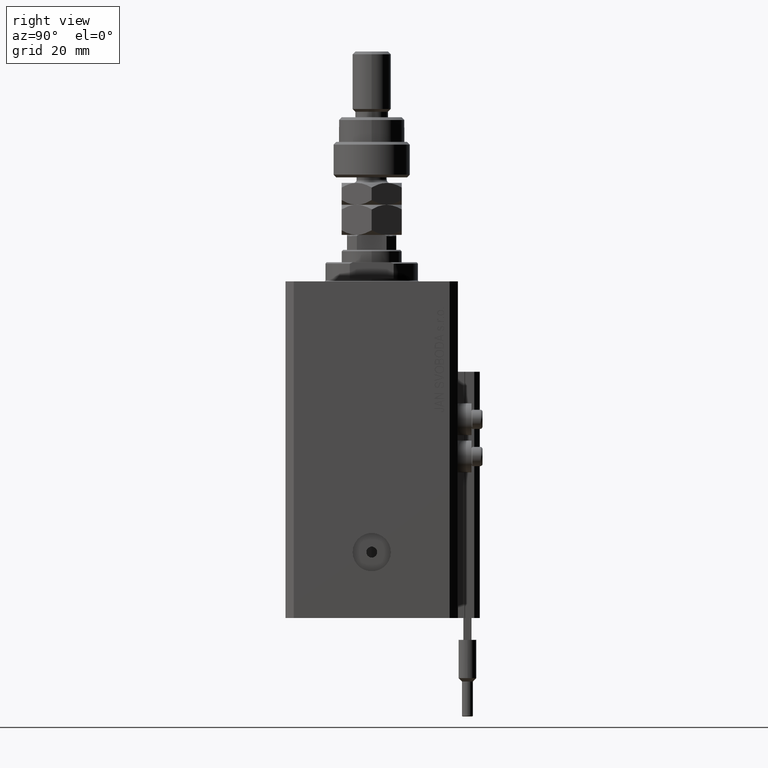
[diagram: clean part render]
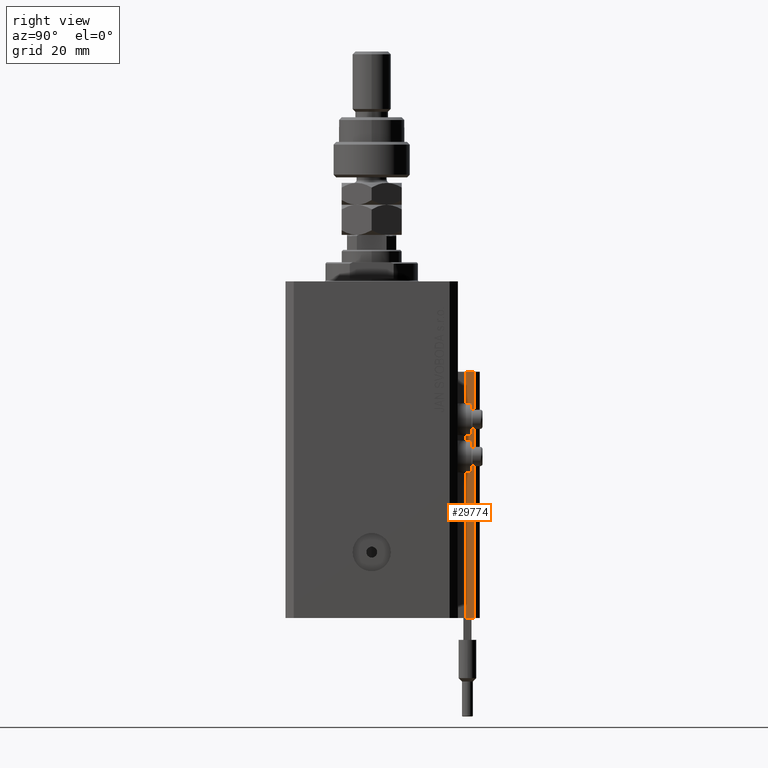
[diagram: same view with one face highlighted and labeled with its STEP entity id]
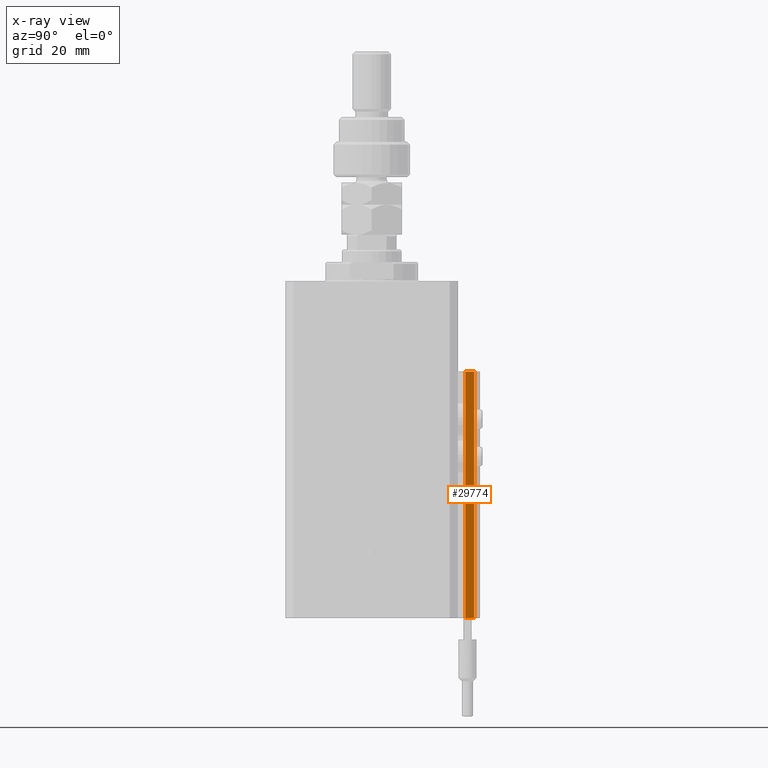
[diagram: x-ray of the same camera — body ghosted, the highlighted face saturated]
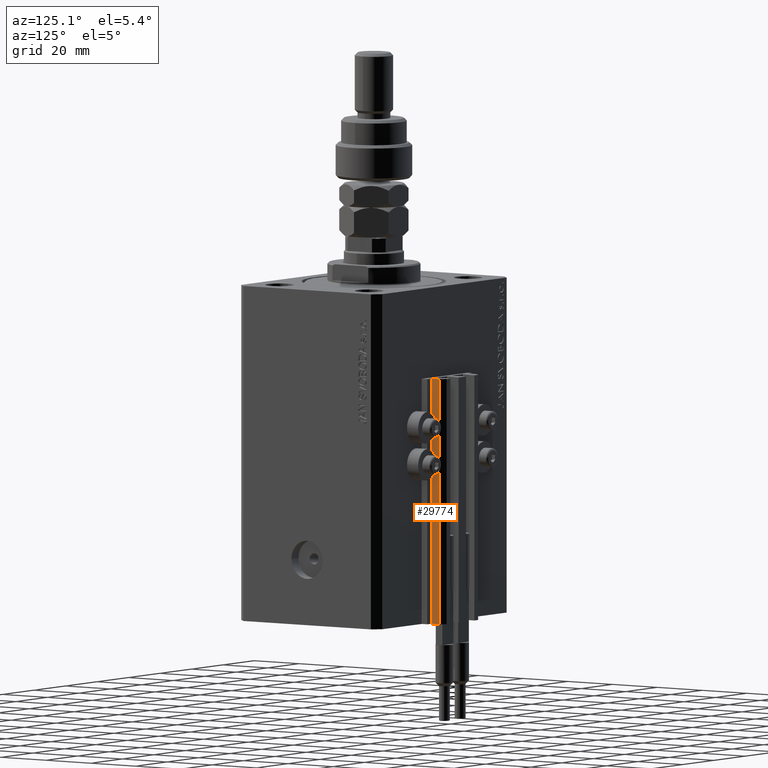
[diagram: same view with one face highlighted and labeled with its STEP entity id]
A machine part, right view. The second image highlights one B-rep face of the part: STEP entity #29774.
The next image is the same camera in x-ray: the body ghosted, the highlighted face saturated — about 0% of this face is hidden behind the body in this view.
A second angle (auxiliary view) of the same face is appended — the face is thin or edge-on in the first view.
In plain terms, the highlighted planar face has unit normal (1, 0, 0).
Its self-contained STEP definition (entity closure, byte-faithful):
#720 = CARTESIAN_POINT ( 'NONE',  ( 12.00000000000000178, 34.20000000000002416, -33.00000000000000000 ) ) ;
#821 = VECTOR ( 'NONE', #3772, 1000.000000000000000 ) ;
#3009 = LINE ( 'NONE', #7389, #821 ) ;
#3193 = VECTOR ( 'NONE', #17880, 1000.000000000000000 ) ;
#3518 = FACE_OUTER_BOUND ( 'NONE', #31389, .T. ) ;
#3772 = DIRECTION ( 'NONE',  ( -5.256737805990328981E-16, 1.000000000000000000, 0.000000000000000000 ) ) ;
#6788 = LINE ( 'NONE', #34351, #3193 ) ;
#7389 = CARTESIAN_POINT ( 'NONE',  ( 12.00000000000000178, 34.20000000000002416, -123.0000000000000000 ) ) ;
#7971 = LINE ( 'NONE', #23936, #9735 ) ;
#9735 = VECTOR ( 'NONE', #15433, 1000.000000000000000 ) ;
#9967 = DIRECTION ( 'NONE',  ( -5.256737805990328981E-16, 1.000000000000000000, 0.000000000000000000 ) ) ;
#10261 = EDGE_CURVE ( 'NONE', #20282, #50152, #6788, .T. ) ;
#10987 = EDGE_CURVE ( 'NONE', #37503, #50152, #47630, .T. ) ;
#12656 = EDGE_CURVE ( 'NONE', #14902, #37503, #7971, .T. ) ;
#13652 = EDGE_CURVE ( 'NONE', #14902, #20282, #3009, .T. ) ;
#14902 = VERTEX_POINT ( 'NONE', #22737 ) ;
#15433 = DIRECTION ( 'NONE',  ( 0.000000000000000000, 0.000000000000000000, 1.000000000000000000 ) ) ;
#16300 = ORIENTED_EDGE ( 'NONE', *, *, #10261, .T. ) ;
#17880 = DIRECTION ( 'NONE',  ( 0.000000000000000000, 0.000000000000000000, 1.000000000000000000 ) ) ;
#18835 = VECTOR ( 'NONE', #9967, 1000.000000000000000 ) ;
#20282 = VERTEX_POINT ( 'NONE', #22546 ) ;
#22546 = CARTESIAN_POINT ( 'NONE',  ( 12.00000000000000000, 37.50000000000002132, -123.0000000000000000 ) ) ;
#22737 = CARTESIAN_POINT ( 'NONE',  ( 11.99999999999999822, 34.20000000000002416, -123.0000000000000000 ) ) ;
#23936 = CARTESIAN_POINT ( 'NONE',  ( 11.99999999999999822, 34.20000000000002416, -123.0000000000000000 ) ) ;
#24541 = AXIS2_PLACEMENT_3D ( 'NONE', #27222, #46323, #34953 ) ;
#27222 = CARTESIAN_POINT ( 'NONE',  ( 12.00000000000000178, 34.20000000000002416, -123.0000000000000000 ) ) ;
#28414 = ORIENTED_EDGE ( 'NONE', *, *, #10987, .F. ) ;
#28517 = ORIENTED_EDGE ( 'NONE', *, *, #13652, .T. ) ;
#29774 = ADVANCED_FACE ( 'NONE', ( #3518 ), #43206, .T. ) ;
#31389 = EDGE_LOOP ( 'NONE', ( #28414, #36756, #28517, #16300 ) ) ;
#34351 = CARTESIAN_POINT ( 'NONE',  ( 12.00000000000000000, 37.50000000000002132, -123.0000000000000000 ) ) ;
#34953 = DIRECTION ( 'NONE',  ( -5.256737805990329967E-16, 1.000000000000000000, 0.000000000000000000 ) ) ;
#36756 = ORIENTED_EDGE ( 'NONE', *, *, #12656, .F. ) ;
#37503 = VERTEX_POINT ( 'NONE', #49063 ) ;
#43206 = PLANE ( 'NONE',  #24541 ) ;
#46323 = DIRECTION ( 'NONE',  ( 1.000000000000000000, 5.256737805990329967E-16, -0.000000000000000000 ) ) ;
#47630 = LINE ( 'NONE', #720, #18835 ) ;
#48147 = CARTESIAN_POINT ( 'NONE',  ( 12.00000000000000000, 37.50000000000002132, -33.00000000000000000 ) ) ;
#49063 = CARTESIAN_POINT ( 'NONE',  ( 11.99999999999999822, 34.20000000000002416, -33.00000000000000000 ) ) ;
#50152 = VERTEX_POINT ( 'NONE', #48147 ) ;